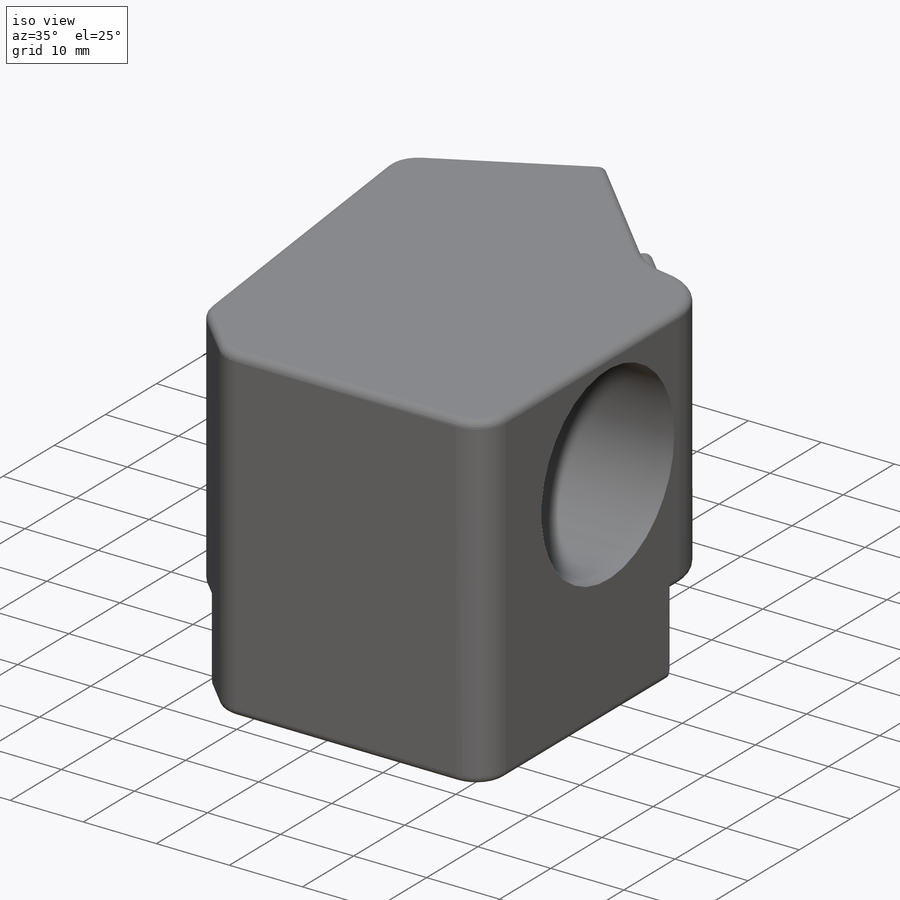
[diagram: iso view]
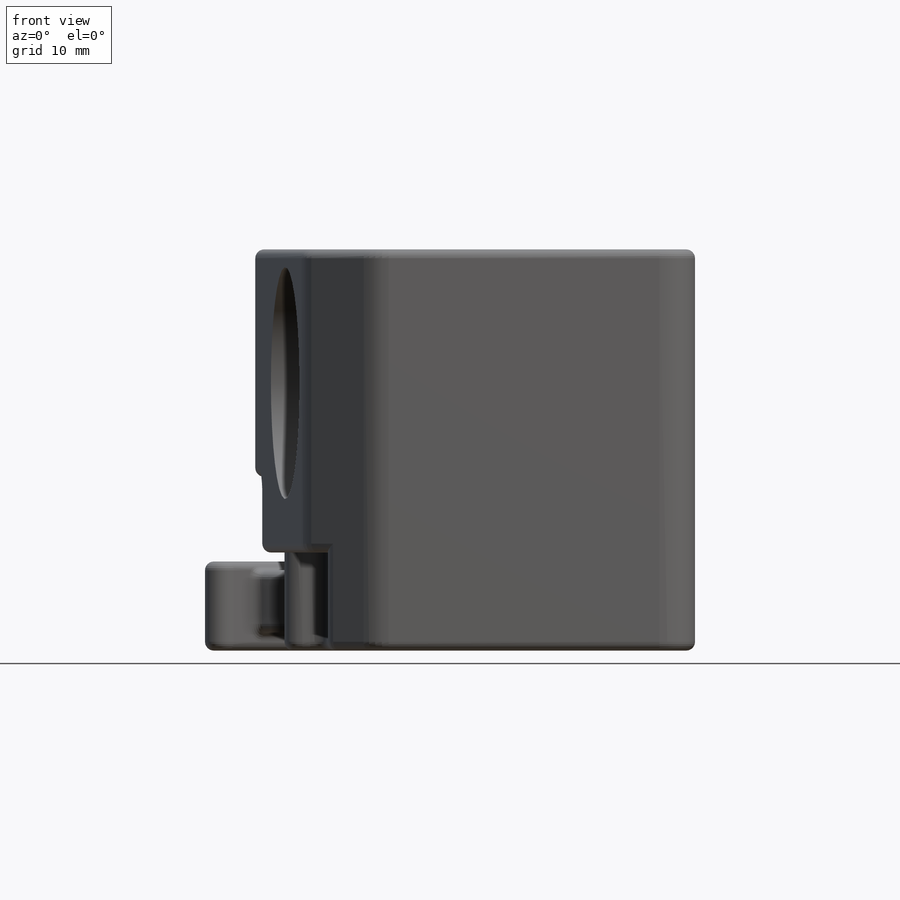
[diagram: front view]
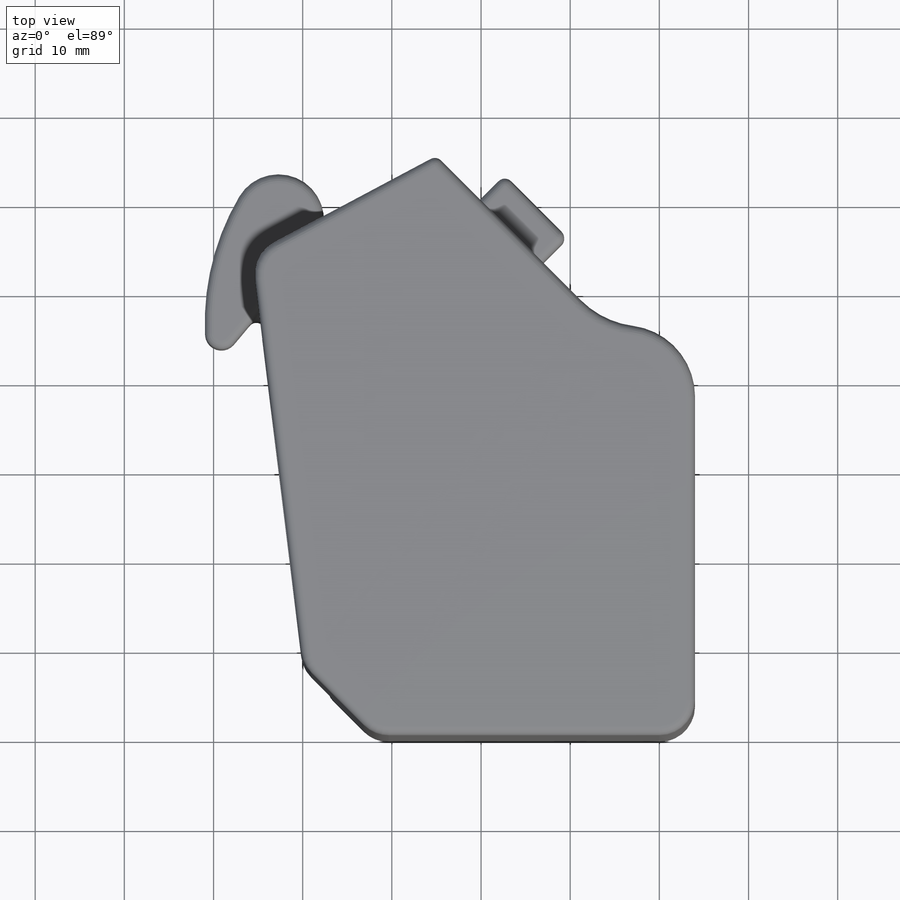
[diagram: top view]
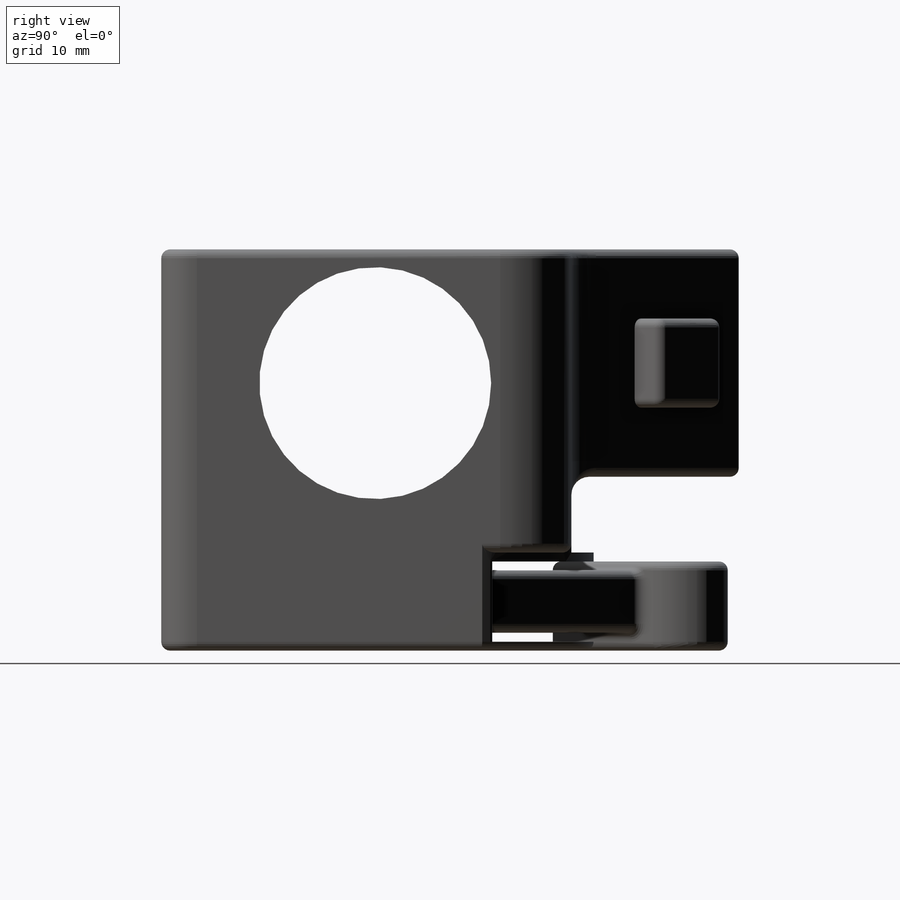
[diagram: right view]
SOLIDWORKS PART (.sldprt)
format: sldprt  version: not decoded by parser v0  size: 646,656 bytes
history: native  units: mm
features: sketch x10, extrude x7, fillet x5, plane x3, cut_extrude x3, material x1 (+10 scaffold rows collapsed)
feature tree (39):
  scaffold x10  (default folders/planes/origin — collapsed)
  material  "材质 <未指定>"
  plane  "前视基准面"
  plane  "上视基准面"
  plane  "右视基准面"
  sketch  "草图1"  dims[c1.D5=8.0mm c1.D7=4.0mm c1.D1=44.0mm c1.D2=46.0mm c1.D3=~6.967731mm c2.D3=45.0deg c2.D4=36.0mm c2.D1=38.0mm c3.D1=7.0deg c3.D6=44.0mm]
  extrude  "凸台-拉伸1"  Depth=34mm
  sketch  "草图2"  dims[c1.D5=4.0mm c1.D6=1.0mm c1.D1=65.0mm c1.D2=10.0mm c1.D3=8.0mm c1.D4=12.0mm c2.D4=100.0deg c3.D4=~24.657443mm c4.D4=45.0deg]
  extrude  "凸台-拉伸2"  Depth=25.5mm
  fillet  "圆角1"  Radius=10mm
  sketch  "草图3"  dims[D3=1.0mm D1=10.0mm D2=10.0mm]
  extrude  "凸台-拉伸3"  Depth=4mm
  sketch  "草图4"  dims[D3=26.5mm D7=2.0mm D2=32.0mm D4=22.5mm D5=6.0mm D6=4.0mm D1=0.0mm]
  extrude  "凸台-拉伸4"  Depth=11mm
  fillet  "圆角2"  Radius=2mm
  sketch  "草图6"  dims[D1=1.5mm D2=1.0mm D3=1.0mm D4=1.0mm]
  cut_extrude  "切除-拉伸1"  Depth=13mm
  sketch  "草图7"  dims[D1=38.5mm]
  cut_extrude  "切除-拉伸2"  Depth=26mm
  fillet  "圆角3"  Radius=0.5mm
  sketch  "草图8"  dims[D1=10.0mm D2=20.0mm D3=28.0mm]
  extrude  "凸台-拉伸5"  [1 undecoded]
  sketch  "草图9"  dims[c1.D1=16.0mm c1.D4=~34.56622mm c2.D4=40.0deg c2.D5=28.0mm c2.D2=4.0mm c2.D3=4.0mm]
  extrude  "凸台-拉伸6"  Depth=7mm
  sketch  "草图10"
  extrude  "凸台-拉伸7"  Depth=2mm
  fillet  "圆角4"  Radius=1mm
  fillet  "圆角5"  Radius=1mm
  sketch  "草图11"  dims[c1.D1=26.0mm c1.D2=15.0mm c1.D3=~22.439811mm c2.D3=90.0deg c3.D3=~22.439811mm c4.D3=90.0deg c5.D3=24.0mm]
  cut_extrude  "切除-拉伸3"  [1 undecoded]
decode coverage: 22 of 25 modeling features carry decoded parameters
note: ~ marks probable driven/reference dimensions
note: 2 parameter values undecoded
note: suppression state not decoded; provenance and decode notes live in map.json
